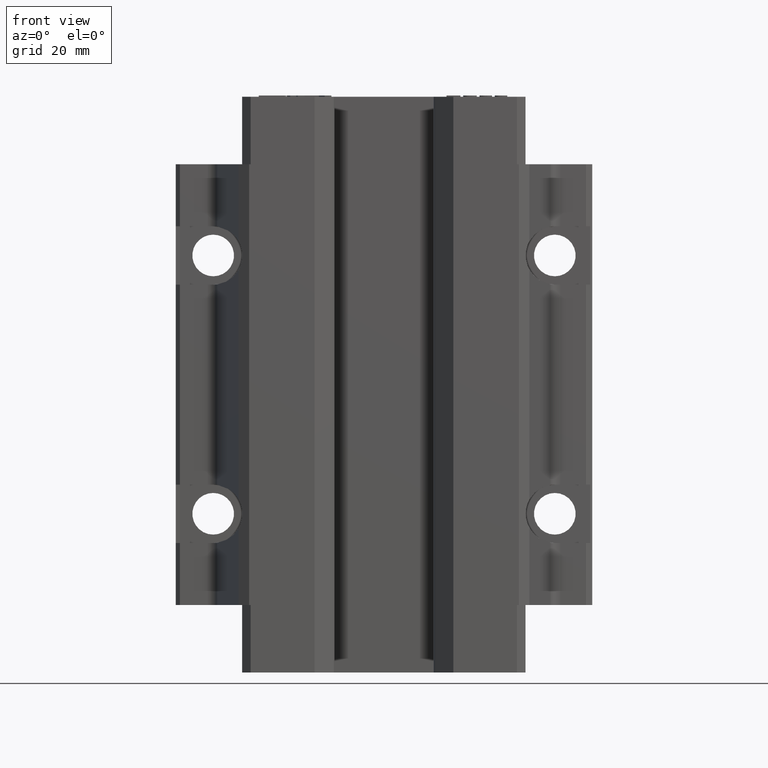
[diagram: clean part render]
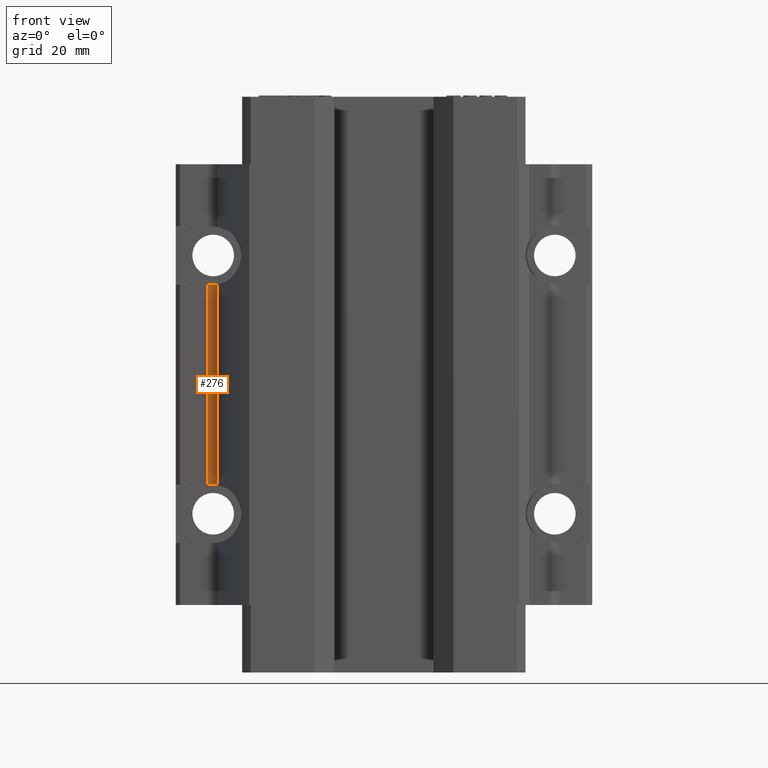
[diagram: same view with one face highlighted and labeled with its STEP entity id]
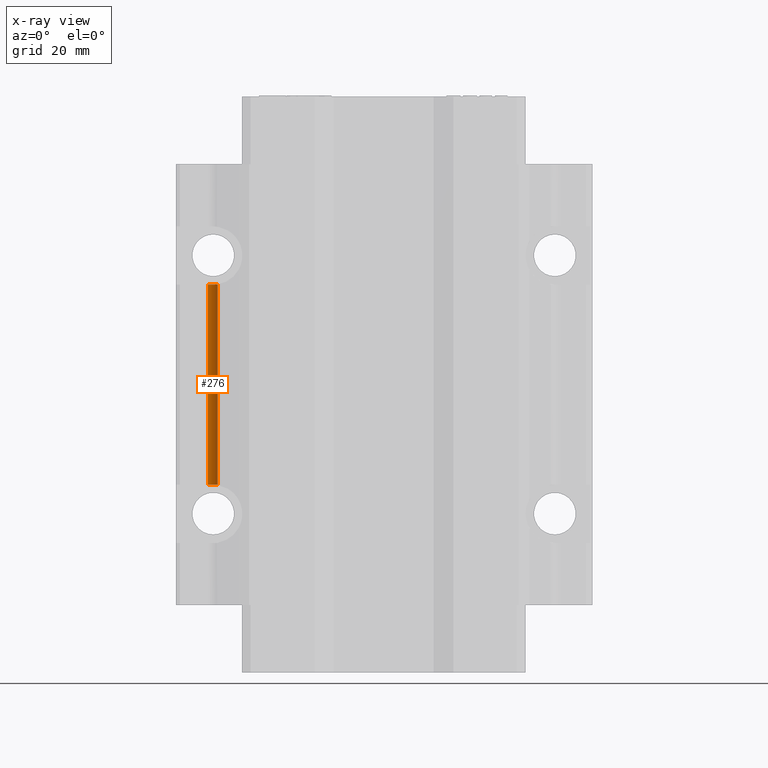
[diagram: x-ray of the same camera — body ghosted, the highlighted face saturated]
A machine part, front view. The second image highlights one B-rep face of the part: STEP entity #276.
The next image is the same camera in x-ray: the body ghosted, the highlighted face saturated — about 0% of this face is hidden behind the body in this view.
In plain terms, the highlighted cylindrical surface (edge-blend (fillet) strip) has radius 2.5 mm, axis along (0, 0, 1).
Its self-contained STEP definition (entity closure, byte-faithful):
#32 = ORIENTED_EDGE ( 'NONE', *, *, #207, .F. ) ;
#146 = VERTEX_POINT ( 'NONE', #13268 ) ;
#198 = VERTEX_POINT ( 'NONE', #11564 ) ;
#199 = ORIENTED_EDGE ( 'NONE', *, *, #200, .T. ) ;
#200 = EDGE_CURVE ( 'NONE', #11436, #198, #11578, .T. ) ;
#201 = EDGE_CURVE ( 'NONE', #198, #146, #11573, .T. ) ;
#205 = ORIENTED_EDGE ( 'NONE', *, *, #201, .T. ) ;
#207 = EDGE_CURVE ( 'NONE', #11489, #146, #11618, .T. ) ;
#260 = EDGE_LOOP ( 'NONE', ( #199, #205, #32, #10322, #444, #446 ) ) ;
#276 = ADVANCED_FACE ( 'NONE', ( #11948 ), #11947, .F. ) ;
#434 = VERTEX_POINT ( 'NONE', #12209 ) ;
#444 = ORIENTED_EDGE ( 'NONE', *, *, #445, .T. ) ;
#445 = EDGE_CURVE ( 'NONE', #434, #11451, #12256, .T. ) ;
#446 = ORIENTED_EDGE ( 'NONE', *, *, #11455, .F. ) ;
#2355 = CARTESIAN_POINT ( 'NONE',  ( -42.31319970119999900, 1.000000000000000400, -24.00000000000000000 ) ) ;
#2379 = DIRECTION ( 'NONE',  ( 0.0000000000000000000, 0.0000000000000000000, 1.000000000000000000 ) ) ;
#2380 = VECTOR ( 'NONE', #2379, 1000.000000000000000 ) ;
#2381 = CARTESIAN_POINT ( 'NONE',  ( -42.31319970119999900, 1.000000000000000000, -52.90000000000000600 ) ) ;
#2387 = LINE ( 'NONE', #2381, #2380 ) ;
#2390 = CARTESIAN_POINT ( 'NONE',  ( -42.31319970119999900, 1.000000000000000200, 23.99999999999999300 ) ) ;
#2457 = CARTESIAN_POINT ( 'NONE',  ( -39.89838513547977800, -0.8529523872438223900, 24.08722597720152300 ) ) ;
#9105 = CARTESIAN_POINT ( 'NONE',  ( -40.99999999999965900, 0.6273237987592180700, 23.99999999999999600 ) ) ;
#9106 = CARTESIAN_POINT ( 'NONE',  ( -40.86463702138232200, 0.5437640589689607400, 24.00000000000001400 ) ) ;
#9107 = CARTESIAN_POINT ( 'NONE',  ( -40.73748729787761400, 0.4472427622170291300, 24.00396679676662300 ) ) ;
#9108 = CARTESIAN_POINT ( 'NONE',  ( -40.50636457058151100, 0.2349267315231055000, 24.01646811689513700 ) ) ;
#9109 = CARTESIAN_POINT ( 'NONE',  ( -40.40142857473703200, 0.1186511523113309200, 24.02499683231190300 ) ) ;
#9110 = CARTESIAN_POINT ( 'NONE',  ( -40.21307553096588800, -0.1345774051764042100, 24.04372895723320300 ) ) ;
#9111 = CARTESIAN_POINT ( 'NONE',  ( -40.13077596331171300, -0.2705560997848419600, 24.05383701719062700 ) ) ;
#9112 = CARTESIAN_POINT ( 'NONE',  ( -39.99445606875642100, -0.5524063938180475700, 24.07225779838430700 ) ) ;
#9113 = CARTESIAN_POINT ( 'NONE',  ( -39.93951561969959100, -0.6994513303864795500, 24.08067145181889400 ) ) ;
#9114 = CARTESIAN_POINT ( 'NONE',  ( -39.89838513547977800, -0.8529523872438223900, 24.08722597720152300 ) ) ;
#9118 = B_SPLINE_CURVE_WITH_KNOTS ( 'NONE', 3,
 ( #9114, #9113, #9112, #9111, #9110, #9109, #9108, #9107, #9106, #9105 ),
 .UNSPECIFIED., .F., .F.,
 ( 4, 2, 2, 2, 4 ),
 ( 3.768612048166659700E-016, 0.0004703449892942486600, 0.0009406899785881204500, 0.001411034967881992200, 0.001881379957175863600 ),
 .UNSPECIFIED. ) ;
#10320 = EDGE_CURVE ( 'NONE', #11489, #434, #9118, .T. ) ;
#10322 = ORIENTED_EDGE ( 'NONE', *, *, #10320, .T. ) ;
#11436 = VERTEX_POINT ( 'NONE', #2355 ) ;
#11451 = VERTEX_POINT ( 'NONE', #2390 ) ;
#11455 = EDGE_CURVE ( 'NONE', #11436, #11451, #2387, .T. ) ;
#11489 = VERTEX_POINT ( 'NONE', #2457 ) ;
#11564 = CARTESIAN_POINT ( 'NONE',  ( -41.00000000000000000, 0.6273237987594276800, -24.00000000000000000 ) ) ;
#11570 = CARTESIAN_POINT ( 'NONE',  ( -40.73946815370153000, 0.4488234871301524100, -24.00389393793314200 ) ) ;
#11571 = CARTESIAN_POINT ( 'NONE',  ( -40.86464527791827100, 0.5437691557391615100, -24.00000000000001100 ) ) ;
#11572 = CARTESIAN_POINT ( 'NONE',  ( -41.00000000000000000, 0.6273237987594276800, -24.00000000000000000 ) ) ;
#11573 = B_SPLINE_CURVE_WITH_KNOTS ( 'NONE', 3,
 ( #11572, #11571, #11570, #11627, #11625, #11624, #11623, #11622, #11621, #11620 ),
 .UNSPECIFIED., .F., .F.,
 ( 4, 2, 2, 2, 4 ),
 ( 7.864227181633732200E-016, 0.0004702500774610968000, 0.0009405001549214071200, 0.001410750232381717500, 0.001881000309842028000 ),
 .UNSPECIFIED. ) ;
#11574 = DIRECTION ( 'NONE',  ( 1.000000000000000000, -4.423544863740854100E-015, 0.0000000000000000000 ) ) ;
#11575 = DIRECTION ( 'NONE',  ( 0.0000000000000000000, 0.0000000000000000000, -1.000000000000000000 ) ) ;
#11576 = CARTESIAN_POINT ( 'NONE',  ( -42.31319970119999900, -1.500000000000000000, -24.00000000000000000 ) ) ;
#11577 = AXIS2_PLACEMENT_3D ( 'NONE', #11576, #11575, #11574 ) ;
#11578 = CIRCLE ( 'NONE', #11577, 2.500000000000002200 ) ;
#11615 = DIRECTION ( 'NONE',  ( 0.0000000000000000000, 0.0000000000000000000, -1.000000000000000000 ) ) ;
#11616 = VECTOR ( 'NONE', #11615, 1000.000000000000000 ) ;
#11617 = CARTESIAN_POINT ( 'NONE',  ( -39.89838513547994800, -0.8529523872438863300, -52.90000000000000600 ) ) ;
#11618 = LINE ( 'NONE', #11617, #11616 ) ;
#11620 = CARTESIAN_POINT ( 'NONE',  ( -39.89838513547871900, -0.8529523872435006400, -24.08722597720236900 ) ) ;
#11621 = CARTESIAN_POINT ( 'NONE',  ( -39.93950756083497600, -0.6994814064786555300, -24.08067273607395000 ) ) ;
#11622 = CARTESIAN_POINT ( 'NONE',  ( -39.99537174341499900, -0.5501183761185389800, -24.07212206437181500 ) ) ;
#11623 = CARTESIAN_POINT ( 'NONE',  ( -40.13227018493574100, -0.2678685190431795400, -24.05364731726488300 ) ) ;
#11624 = CARTESIAN_POINT ( 'NONE',  ( -40.21345215387570700, -0.1340048671794024400, -24.04368639857071300 ) ) ;
#11625 = CARTESIAN_POINT ( 'NONE',  ( -40.40180089741930700, 0.1190852597345371400, -24.02496492701688500 ) ) ;
#11627 = CARTESIAN_POINT ( 'NONE',  ( -40.50848525774696900, 0.2371095950382884900, -24.01631972862642800 ) ) ;
#11902 = CARTESIAN_POINT ( 'NONE',  ( -42.31319970119999900, -1.500000000000000000, -52.90000000000000600 ) ) ;
#11943 = DIRECTION ( 'NONE',  ( 1.000000000000000000, 0.0000000000000000000, 0.0000000000000000000 ) ) ;
#11944 = DIRECTION ( 'NONE',  ( 0.0000000000000000000, 0.0000000000000000000, 1.000000000000000000 ) ) ;
#11945 = AXIS2_PLACEMENT_3D ( 'NONE', #11902, #11944, #11943 ) ;
#11947 = CYLINDRICAL_SURFACE ( 'NONE', #11945, 2.500000000000002200 ) ;
#11948 = FACE_OUTER_BOUND ( 'NONE', #260, .T. ) ;
#12209 = CARTESIAN_POINT ( 'NONE',  ( -40.99999999999965900, 0.6273237987592180700, 23.99999999999999600 ) ) ;
#12252 = DIRECTION ( 'NONE',  ( 1.000000000000000000, 0.0000000000000000000, 0.0000000000000000000 ) ) ;
#12253 = DIRECTION ( 'NONE',  ( 0.0000000000000000000, 0.0000000000000000000, 1.000000000000000000 ) ) ;
#12254 = CARTESIAN_POINT ( 'NONE',  ( -42.31319970119999900, -1.500000000000000000, 23.99999999999999300 ) ) ;
#12255 = AXIS2_PLACEMENT_3D ( 'NONE', #12254, #12253, #12252 ) ;
#12256 = CIRCLE ( 'NONE', #12255, 2.500000000000002200 ) ;
#13268 = CARTESIAN_POINT ( 'NONE',  ( -39.89838513547871900, -0.8529523872435006400, -24.08722597720236900 ) ) ;